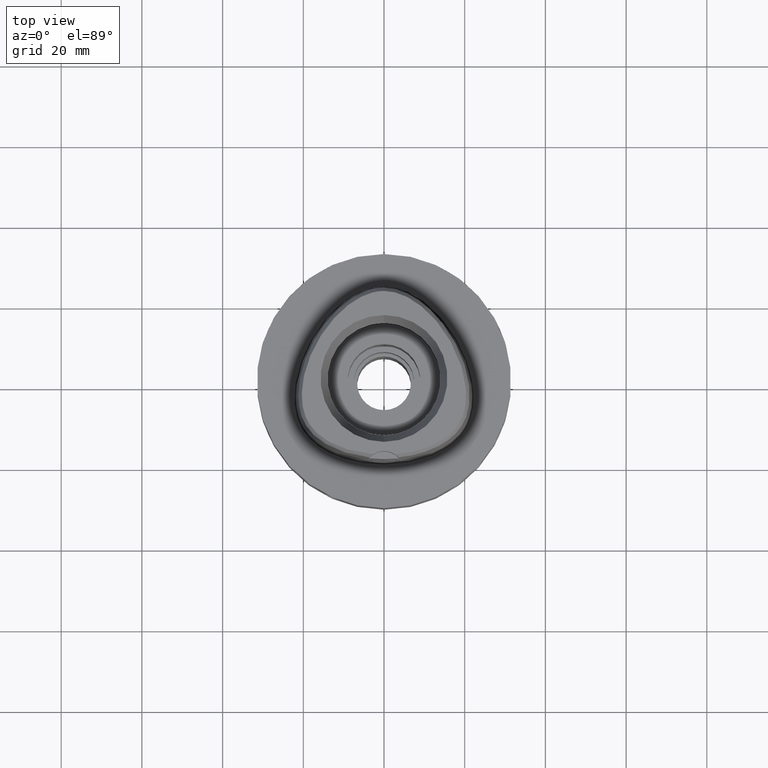
[diagram: clean part render]
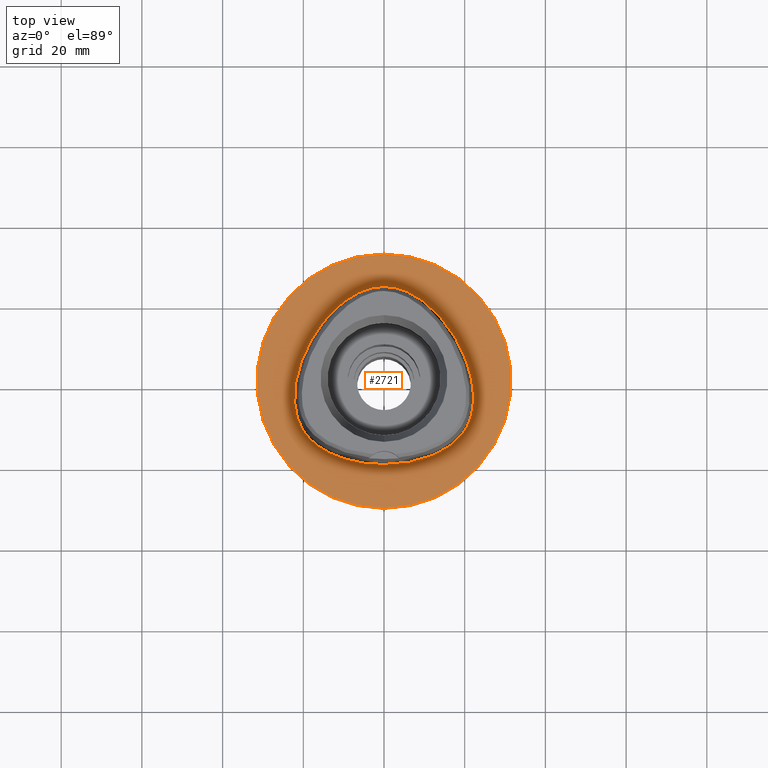
[diagram: same view with one face highlighted and labeled with its STEP entity id]
A machine part, top view. The second image highlights one B-rep face of the part: STEP entity #2721.
In plain terms, the highlighted planar face has unit normal (0, 0, -1).
Its self-contained STEP definition (entity closure, byte-faithful):
#53 = CARTESIAN_POINT ( 'NONE',  ( -5.098437016809340250, 22.52602538944992006, 5.074574099686937623E-08 ) ) ;
#83 = B_SPLINE_CURVE_WITH_KNOTS ( 'NONE', 3,
 ( #607, #2190, #4513, #223, #2167, #3734, #3350, #1807, #4928, #1146, #2707, #2260, #2335, #1566, #1544, #4686, #2734, #406, #320, #1064, #295, #3903, #3490 ),
 .UNSPECIFIED., .F., .F.,
 ( 4, 1, 1, 1, 1, 1, 1, 1, 1, 1, 1, 1, 1, 1, 1, 1, 1, 1, 1, 1, 4 ),
 ( 0.0000000000000000000, 0.08333333333340001148, 0.1666666666667000196, 0.2083333333333000081, 0.2500000000000000000, 0.2916666666666999919, 0.3125000000000000000, 0.3333333333333000081, 0.3541666666666000163, 0.3749999999998999689, 0.4166666666666000163, 0.4583333333332000326, 0.4999999999998999689, 0.5833333333331000015, 0.6666666666664999852, 0.7499999999998000488, 0.8333333333329999704, 0.8749999999997000177, 0.9166666666664000651, 0.9583333333329999704, 1.000000000000000000 ),
 .UNSPECIFIED. ) ;
#104 = DIRECTION ( 'NONE',  ( 0.0000000000000000000, 0.0000000000000000000, -1.000000000000000000 ) ) ;
#132 = AXIS2_PLACEMENT_3D ( 'NONE', #688, #1419, #3769 ) ;
#222 = DIRECTION ( 'NONE',  ( 0.0000000000000000000, -1.000000000000000000, 0.0000000000000000000 ) ) ;
#223 = CARTESIAN_POINT ( 'NONE',  ( 11.23259758758072024, -18.89324224333665825, -2.363905650680552320E-06 ) ) ;
#230 = CARTESIAN_POINT ( 'NONE',  ( 4.711967337882999894E-11, 23.47499999999000053, 5.403085386508999448E-14 ) ) ;
#256 = EDGE_CURVE ( 'NONE', #4445, #1264, #2350, .T. ) ;
#295 = CARTESIAN_POINT ( 'NONE',  ( 2.564517739103601368, 23.29328130818978337, -2.363905650680552320E-06 ) ) ;
#306 = ORIENTED_EDGE ( 'NONE', *, *, #667, .F. ) ;
#308 = VERTEX_POINT ( 'NONE', #230 ) ;
#320 = CARTESIAN_POINT ( 'NONE',  ( 7.571159464291276286, 21.31457036366172986, -2.363905650680552320E-06 ) ) ;
#406 = CARTESIAN_POINT ( 'NONE',  ( 10.74572894880317264, 19.17433598300426567, -2.363905650680552320E-06 ) ) ;
#478 = CARTESIAN_POINT ( 'NONE',  ( -10.74572890977492001, 19.17433593652737400, 5.074574099686937623E-08 ) ) ;
#497 = CARTESIAN_POINT ( 'NONE',  ( 0.0000000000000000000, 0.0000000000000000000, 0.0000000000000000000 ) ) ;
#569 = CARTESIAN_POINT ( 'NONE',  ( -2.113823672988818458, -20.67499999872887884, 5.074574099686937623E-08 ) ) ;
#607 = CARTESIAN_POINT ( 'NONE',  ( -8.195360115544000009E-12, -20.67499999999999716, 5.691743372911998950E-14 ) ) ;
#667 = EDGE_CURVE ( 'NONE', #1264, #4445, #2942, .T. ) ;
#688 = CARTESIAN_POINT ( 'NONE',  ( 0.0000000000000000000, 0.0000000000000000000, 0.0000000000000000000 ) ) ;
#827 = FACE_OUTER_BOUND ( 'NONE', #2492, .T. ) ;
#853 = CARTESIAN_POINT ( 'NONE',  ( -20.34961798446603964, -11.74885742123240284, 5.074574099686937623E-08 ) ) ;
#887 = CARTESIAN_POINT ( 'NONE',  ( -11.23259756683588151, -18.89324218630157048, 5.074574099686937623E-08 ) ) ;
#995 = FACE_BOUND ( 'NONE', #1289, .T. ) ;
#1064 = CARTESIAN_POINT ( 'NONE',  ( 5.098437039341796151, 22.52602544572460985, -2.363905650680552320E-06 ) ) ;
#1146 = CARTESIAN_POINT ( 'NONE',  ( 20.93173257620247441, -10.60431643031911442, -2.363905650680552320E-06 ) ) ;
#1239 = CARTESIAN_POINT ( 'NONE',  ( -21.97832647661176253, -0.2810937502219505446, 5.074574099686937623E-08 ) ) ;
#1264 = VERTEX_POINT ( 'NONE', #2593 ) ;
#1289 = EDGE_LOOP ( 'NONE', ( #1348, #3117 ) ) ;
#1348 = ORIENTED_EDGE ( 'NONE', *, *, #3550, .F. ) ;
#1371 = CARTESIAN_POINT ( 'NONE',  ( -8.195360115544000009E-12, -20.67499999999999716, 5.691743372911998950E-14 ) ) ;
#1419 = DIRECTION ( 'NONE',  ( 0.0000000000000000000, 0.0000000000000000000, -1.000000000000000000 ) ) ;
#1544 = CARTESIAN_POINT ( 'NONE',  ( 20.74942746471035449, 4.657187520149233428, -2.363905650680552320E-06 ) ) ;
#1566 = CARTESIAN_POINT ( 'NONE',  ( 21.97832653638477396, -0.2810937396609591854, -2.363905650680552320E-06 ) ) ;
#1639 = CARTESIAN_POINT ( 'NONE',  ( -7.571159433708714026, 21.31457031140438829, 5.074574099686937623E-08 ) ) ;
#1666 = CARTESIAN_POINT ( 'NONE',  ( -22.24453907727517787, -4.100468750007105534, 5.074574099686937623E-08 ) ) ;
#1807 = CARTESIAN_POINT ( 'NONE',  ( 19.64947370652028980, -12.82525394105311989, -2.363905650680552320E-06 ) ) ;
#1874 = EDGE_CURVE ( 'NONE', #2489, #308, #83, .T. ) ;
#2052 = CARTESIAN_POINT ( 'NONE',  ( -14.40795638860816119, 15.64093749917665832, 5.074574099686937623E-08 ) ) ;
#2073 = DIRECTION ( 'NONE',  ( 0.0000000000000000000, 1.000000000000000000, 0.0000000000000000000 ) ) ;
#2118 = DIRECTION ( 'NONE',  ( 0.0000000000000000000, 0.0000000000000000000, -1.000000000000000000 ) ) ;
#2127 = CARTESIAN_POINT ( 'NONE',  ( -0.8548392422132915502, 23.47499999873639709, 5.074574099686938284E-08 ) ) ;
#2167 = CARTESIAN_POINT ( 'NONE',  ( 14.67337967353548400, -17.21410161400581984, -2.363905650680552320E-06 ) ) ;
#2190 = CARTESIAN_POINT ( 'NONE',  ( 2.113823676580274480, -20.67500005909406013, -2.363905650680552320E-06 ) ) ;
#2260 = CARTESIAN_POINT ( 'NONE',  ( 22.05732880196588397, -6.847636727192647932, -2.363905650680552320E-06 ) ) ;
#2335 = CARTESIAN_POINT ( 'NONE',  ( 22.24453913782586767, -4.100468749652660172, -2.363905650680552320E-06 ) ) ;
#2350 = CIRCLE ( 'NONE', #132, 31.50000000000000000 ) ;
#2377 = B_SPLINE_CURVE_WITH_KNOTS ( 'NONE', 3,
 ( #3586, #2127, #3697, #53, #1639, #478, #2052, #3206, #4784, #1239, #1666, #4002, #2829, #4387, #853, #3614, #3230, #4811, #4419, #887, #4031, #569, #1371 ),
 .UNSPECIFIED., .F., .F.,
 ( 4, 1, 1, 1, 1, 1, 1, 1, 1, 1, 1, 1, 1, 1, 1, 1, 1, 1, 1, 1, 4 ),
 ( 0.0000000000000000000, 0.04166666666739000241, 0.08333333333401000964, 0.1250000000005999923, 0.1666666666673000119, 0.2500000000004999889, 0.3333333333337000215, 0.4166666666670000296, 0.5000000000002999823, 0.5416666666668999985, 0.5833333333335000148, 0.6250000000001000311, 0.6458333333333999837, 0.6666666666667999674, 0.6875000000001000311, 0.7083333333333999837, 0.7500000000000000000, 0.7916666666667000474, 0.8333333333332000326, 0.9166666666664999852, 1.000000000000000000 ),
 .UNSPECIFIED. ) ;
#2489 = VERTEX_POINT ( 'NONE', #4980 ) ;
#2492 = EDGE_LOOP ( 'NONE', ( #306, #4044 ) ) ;
#2510 = CARTESIAN_POINT ( 'NONE',  ( 0.0000000000000000000, 0.0000000000000000000, 0.0000000000000000000 ) ) ;
#2593 = CARTESIAN_POINT ( 'NONE',  ( 0.0000000000000000000, 31.50000000000000000, 0.0000000000000000000 ) ) ;
#2707 = CARTESIAN_POINT ( 'NONE',  ( 21.55524831694449617, -8.996025407520710004, -2.363905650680552320E-06 ) ) ;
#2721 = ADVANCED_FACE ( 'NONE', ( #827, #995 ), #4512, .F. ) ;
#2734 = CARTESIAN_POINT ( 'NONE',  ( 14.40795643498416467, 15.64093753835265765, -2.363905650680552320E-06 ) ) ;
#2829 = CARTESIAN_POINT ( 'NONE',  ( -21.55524825887341578, -8.996025390262811783, 5.074574099686937623E-08 ) ) ;
#2942 = CIRCLE ( 'NONE', #4498, 31.50000000000000000 ) ;
#3117 = ORIENTED_EDGE ( 'NONE', *, *, #1874, .F. ) ;
#3206 = CARTESIAN_POINT ( 'NONE',  ( -18.06826688416968096, 10.43171874936710708, 5.074574099686937623E-08 ) ) ;
#3230 = CARTESIAN_POINT ( 'NONE',  ( -18.56841065050385708, -14.16937988194151998, 5.074574099686937623E-08 ) ) ;
#3350 = CARTESIAN_POINT ( 'NONE',  ( 18.56841069446557313, -14.16937992358677789, -2.363905650680552320E-06 ) ) ;
#3486 = AXIS2_PLACEMENT_3D ( 'NONE', #2510, #2118, #222 ) ;
#3490 = CARTESIAN_POINT ( 'NONE',  ( 4.711967337882999894E-11, 23.47499999999000053, 5.403085386508999448E-14 ) ) ;
#3550 = EDGE_CURVE ( 'NONE', #308, #2489, #2377, .T. ) ;
#3586 = CARTESIAN_POINT ( 'NONE',  ( 4.711967337882999894E-11, 23.47499999999000053, 5.403085386508999448E-14 ) ) ;
#3614 = CARTESIAN_POINT ( 'NONE',  ( -19.64947365760952280, -12.82525390549659683, 5.074574099686937623E-08 ) ) ;
#3697 = CARTESIAN_POINT ( 'NONE',  ( -2.564517726696156519, 23.29328124875310380, 5.074574099686937623E-08 ) ) ;
#3734 = CARTESIAN_POINT ( 'NONE',  ( 16.95889176262598497, -15.67838871852732296, -2.363905650680552320E-06 ) ) ;
#3769 = DIRECTION ( 'NONE',  ( 0.0000000000000000000, -1.000000000000000000, 0.0000000000000000000 ) ) ;
#3795 = CARTESIAN_POINT ( 'NONE',  ( 0.0000000000000000000, -31.50000000000000000, 0.0000000000000000000 ) ) ;
#3903 = CARTESIAN_POINT ( 'NONE',  ( 0.8548392464959057024, 23.47500005910224630, -2.363905650680552320E-06 ) ) ;
#4002 = CARTESIAN_POINT ( 'NONE',  ( -22.05732874196484161, -6.847636718568409719, 5.074574099686937623E-08 ) ) ;
#4031 = CARTESIAN_POINT ( 'NONE',  ( -6.341471018986260866, -20.29812499875065512, 5.074574099686937623E-08 ) ) ;
#4044 = ORIENTED_EDGE ( 'NONE', *, *, #256, .F. ) ;
#4387 = CARTESIAN_POINT ( 'NONE',  ( -20.93173252095327896, -10.60431640573847822, 5.074574099686937623E-08 ) ) ;
#4419 = CARTESIAN_POINT ( 'NONE',  ( -14.67337964357059654, -17.21410156139463510, 5.074574099686937623E-08 ) ) ;
#4445 = VERTEX_POINT ( 'NONE', #3795 ) ;
#4498 = AXIS2_PLACEMENT_3D ( 'NONE', #497, #104, #2073 ) ;
#4512 = PLANE ( 'NONE',  #3486 ) ;
#4513 = CARTESIAN_POINT ( 'NONE',  ( 6.341471029712526963, -20.29812505849476878, -2.363905650680552320E-06 ) ) ;
#4686 = CARTESIAN_POINT ( 'NONE',  ( 18.06826693670648254, 10.43171877969655981, -2.363905650680552320E-06 ) ) ;
#4784 = CARTESIAN_POINT ( 'NONE',  ( -20.74942740759727755, 4.657187499567274180, 5.074574099686937623E-08 ) ) ;
#4811 = CARTESIAN_POINT ( 'NONE',  ( -16.95889172515036236, -15.67838867086979171, 5.074574099686937623E-08 ) ) ;
#4928 = CARTESIAN_POINT ( 'NONE',  ( 20.34961803683679094, -11.74885745147594918, -2.363905650680552320E-06 ) ) ;
#4980 = CARTESIAN_POINT ( 'NONE',  ( -8.195360115544000009E-12, -20.67499999999999716, 5.691743372911998950E-14 ) ) ;